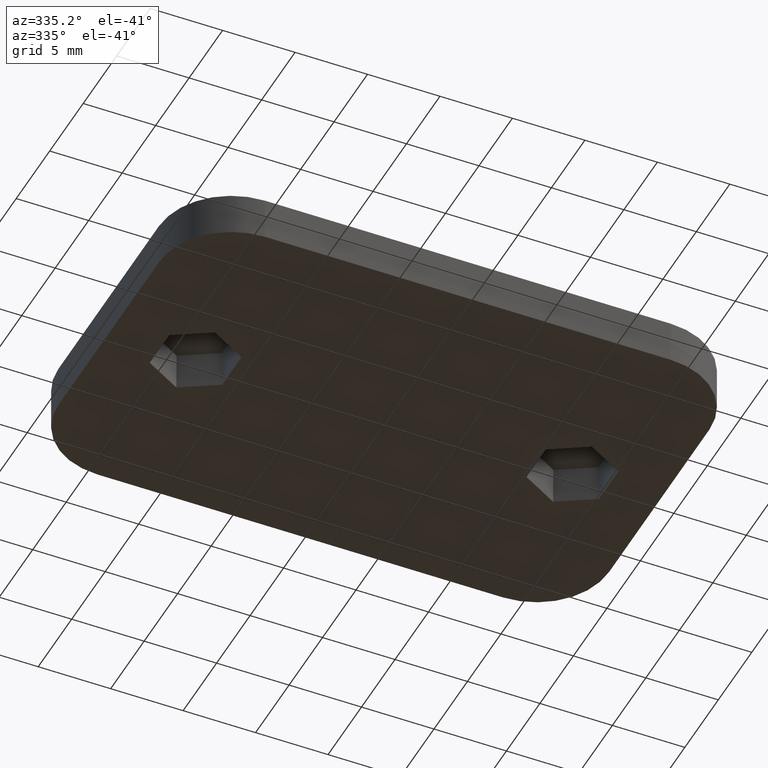
[diagram: clean part render]
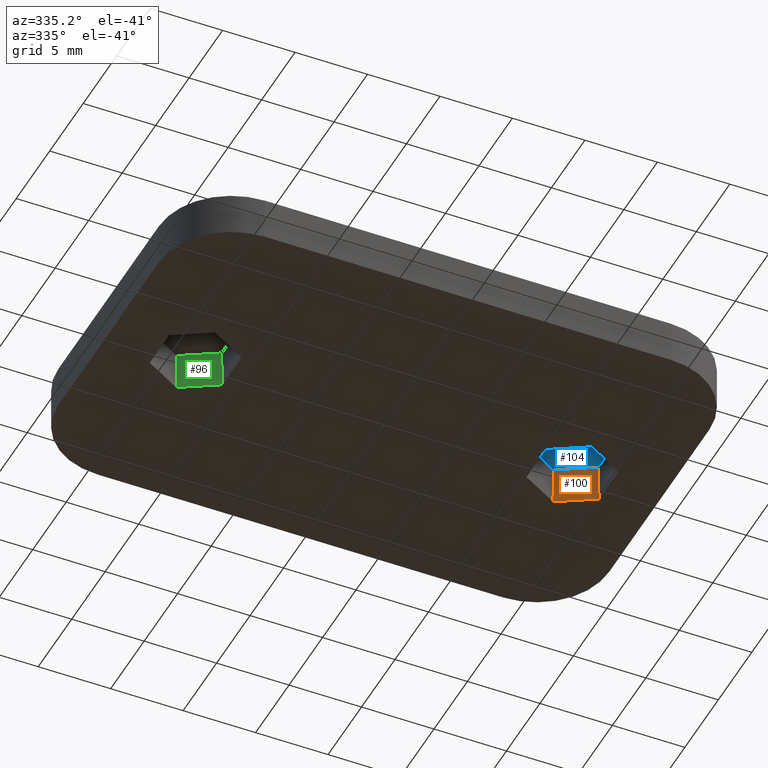
[diagram: same view with three faces highlighted in distinct colors, each labeled with its STEP entity id]
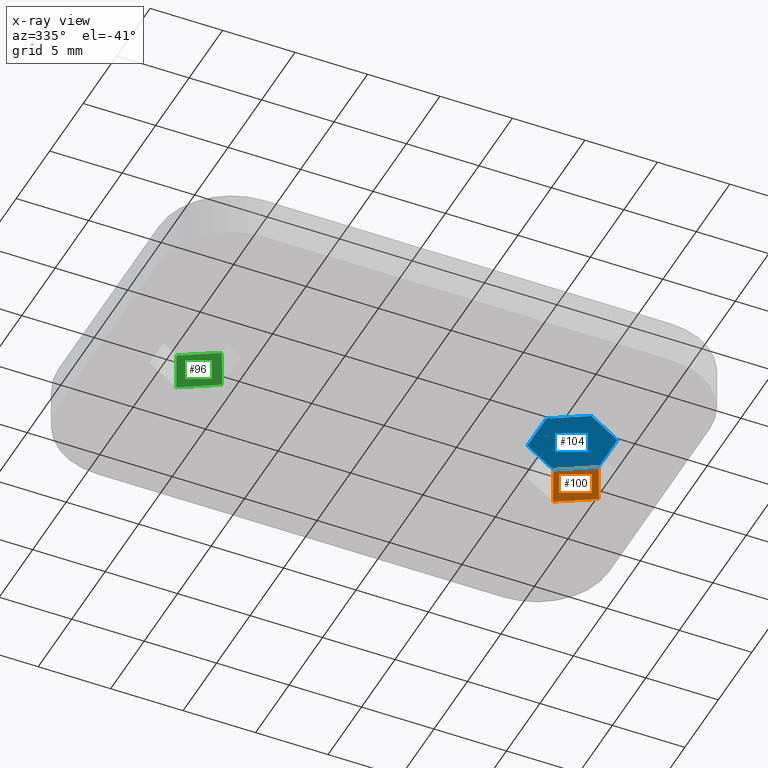
[diagram: x-ray of the same camera — body ghosted, the three highlighted faces saturated]
A machine part, auxiliary view with three faces highlighted in distinct colors.
The next image is the same camera in x-ray (body ghosted, the three faces saturated) — at least one of them is partly hidden behind the body in this view.
Their STEP definitions:

[orange] entity #100 — the highlighted planar face has unit normal (0.4999, 0.8659, 0.0175).
#100 = ADVANCED_FACE( '', ( #198 ), #199, .F. );
#198 = FACE_OUTER_BOUND( '', #331, .T. );
#199 = PLANE( '', #332 );
#331 = EDGE_LOOP( '', ( #620, #621, #622, #623 ) );
#332 = AXIS2_PLACEMENT_3D( '', #624, #625, #626 );
#620 = ORIENTED_EDGE( '', *, *, #937, .F. );
#621 = ORIENTED_EDGE( '', *, *, #971, .F. );
#622 = ORIENTED_EDGE( '', *, *, #972, .T. );
#623 = ORIENTED_EDGE( '', *, *, #973, .T. );
#624 = CARTESIAN_POINT( '', ( -7.75000000000002, 14.8667694316329, -1.47880848231540E-014 ) );
#625 = DIRECTION( '', ( 0.499923847578195, 0.865893503920754, 0.0174524064372835 ) );
#626 = DIRECTION( '', ( -0.866025403784439, 0.500000000000000, -3.06058338817720E-017 ) );
#937 = EDGE_CURVE( '', #1136, #1138, #1139, .F. );
#971 = EDGE_CURVE( '', #1189, #1136, #1191, .T. );
#972 = EDGE_CURVE( '', #1189, #1192, #1193, .F. );
#973 = EDGE_CURVE( '', #1192, #1138, #1194, .T. );
#1136 = VERTEX_POINT( '', #1430 );
#1138 = VERTEX_POINT( '', #1433 );
#1139 = LINE( '', #1434, #1435 );
#1189 = VERTEX_POINT( '', #1511 );
#1191 = LINE( '', #1514, #1515 );
#1192 = VERTEX_POINT( '', #1516 );
#1193 = LINE( '', #1517, #1518 );
#1194 = LINE( '', #1519, #1520 );
#1430 = CARTESIAN_POINT( '', ( 15.5000000000000, 1.44337567297407, -1.39661661588183E-014 ) );
#1433 = CARTESIAN_POINT( '', ( 13.0000000000000, 2.88675134594813, -1.40545445098221E-014 ) );
#1434 = CARTESIAN_POINT( '', ( -7.75000000000002, 14.8667694316329, -1.47880848231540E-014 ) );
#1435 = VECTOR( '', #1729, 1000.00000000000 );
#1511 = CARTESIAN_POINT( '', ( 15.4546168311866, 1.41717368824299, 2.59999999999998 ) );
#1514 = CARTESIAN_POINT( '', ( 15.4952793886761, 1.44065022675549, 0.270443641617816 ) );
#1515 = VECTOR( '', #1775, 1000.00000000000 );
#1516 = CARTESIAN_POINT( '', ( 13.0000000000000, 2.83434737648598, 2.59999999999998 ) );
#1517 = CARTESIAN_POINT( '', ( -7.77269158440670, 14.8274664545362, 2.59999999999998 ) );
#1518 = VECTOR( '', #1776, 1000.00000000000 );
#1519 = CARTESIAN_POINT( '', ( 13.0000000000000, 2.88159351224417, 0.255903660885674 ) );
#1520 = VECTOR( '', #1777, 1000.00000000000 );
#1729 = DIRECTION( '', ( 0.866025403784439, -0.500000000000000, 3.06151588455594E-017 ) );
#1775 = DIRECTION( '', ( 0.0174515205435363, 0.0100756400835789, -0.999796942337605 ) );
#1776 = DIRECTION( '', ( 0.866025403784439, -0.500000000000000, 3.06151588455594E-017 ) );
#1777 = DIRECTION( '', ( -1.05175752667661E-017, 0.0201512801671579, -0.999796942337605 ) );

[blue] entity #104 — the highlighted planar face has unit normal (0, 0, 1).
#104 = ADVANCED_FACE( '', ( #206 ), #207, .F. );
#206 = FACE_OUTER_BOUND( '', #339, .T. );
#207 = PLANE( '', #340 );
#339 = EDGE_LOOP( '', ( #648, #649, #650, #651, #652, #653 ) );
#340 = AXIS2_PLACEMENT_3D( '', #654, #655, #656 );
#648 = ORIENTED_EDGE( '', *, *, #968, .F. );
#649 = ORIENTED_EDGE( '', *, *, #978, .F. );
#650 = ORIENTED_EDGE( '', *, *, #976, .F. );
#651 = ORIENTED_EDGE( '', *, *, #974, .F. );
#652 = ORIENTED_EDGE( '', *, *, #972, .F. );
#653 = ORIENTED_EDGE( '', *, *, #970, .F. );
#654 = CARTESIAN_POINT( '', ( 15.5000000000000, -1.44337567297406, 2.59999999999998 ) );
#655 = DIRECTION( '', ( 0.000000000000000, 6.12303176911189E-017, 1.00000000000000 ) );
#656 = DIRECTION( '', ( -1.00000000000000, 1.11022302462516E-016, -6.79793085057932E-033 ) );
#968 = EDGE_CURVE( '', #1184, #1186, #1187, .F. );
#970 = EDGE_CURVE( '', #1186, #1189, #1190, .F. );
#972 = EDGE_CURVE( '', #1189, #1192, #1193, .F. );
#974 = EDGE_CURVE( '', #1192, #1195, #1196, .F. );
#976 = EDGE_CURVE( '', #1195, #1198, #1199, .F. );
#978 = EDGE_CURVE( '', #1198, #1184, #1201, .F. );
#1184 = VERTEX_POINT( '', #1503 );
#1186 = VERTEX_POINT( '', #1506 );
#1187 = LINE( '', #1507, #1508 );
#1189 = VERTEX_POINT( '', #1511 );
#1190 = LINE( '', #1512, #1513 );
#1192 = VERTEX_POINT( '', #1516 );
#1193 = LINE( '', #1517, #1518 );
#1195 = VERTEX_POINT( '', #1521 );
#1196 = LINE( '', #1522, #1523 );
#1198 = VERTEX_POINT( '', #1526 );
#1199 = LINE( '', #1527, #1528 );
#1201 = LINE( '', #1531, #1532 );
#1503 = CARTESIAN_POINT( '', ( 13.0000000000000, -2.83434737648598, 2.59999999999998 ) );
#1506 = CARTESIAN_POINT( '', ( 15.4546168311866, -1.41717368824299, 2.59999999999998 ) );
#1507 = CARTESIAN_POINT( '', ( -6.52269158440669, -14.1057786180492, 2.59999999999999 ) );
#1508 = VECTOR( '', #1772, 1000.00000000000 );
#1511 = CARTESIAN_POINT( '', ( 15.4546168311866, 1.41717368824299, 2.59999999999998 ) );
#1512 = CARTESIAN_POINT( '', ( 15.4546168311866, 1.44337567297408, 2.59999999999998 ) );
#1513 = VECTOR( '', #1774, 1000.00000000000 );
#1516 = CARTESIAN_POINT( '', ( 13.0000000000000, 2.83434737648598, 2.59999999999998 ) );
#1517 = CARTESIAN_POINT( '', ( -7.77269158440670, 14.8274664545362, 2.59999999999998 ) );
#1518 = VECTOR( '', #1776, 1000.00000000000 );
#1521 = CARTESIAN_POINT( '', ( 10.5453831688134, 1.41717368824299, 2.59999999999998 ) );
#1522 = CARTESIAN_POINT( '', ( -8.97730841559332, -9.85425755332025, 2.59999999999998 ) );
#1523 = VECTOR( '', #1778, 1000.00000000000 );
#1526 = CARTESIAN_POINT( '', ( 10.5453831688134, -1.41717368824299, 2.59999999999998 ) );
#1527 = CARTESIAN_POINT( '', ( 10.5453831688134, 1.44337567297406, 2.59999999999998 ) );
#1528 = VECTOR( '', #1780, 1000.00000000000 );
#1531 = CARTESIAN_POINT( '', ( -10.2273084155933, 10.5759453898073, 2.59999999999998 ) );
#1532 = VECTOR( '', #1782, 1000.00000000000 );
#1772 = DIRECTION( '', ( -0.866025403784439, -0.500000000000000, 3.06151588455594E-017 ) );
#1774 = DIRECTION( '', ( 4.99600361081321E-016, -1.00000000000000, 6.12303176911189E-017 ) );
#1776 = DIRECTION( '', ( 0.866025403784439, -0.500000000000000, 3.06151588455594E-017 ) );
#1778 = DIRECTION( '', ( 0.866025403784439, 0.500000000000000, -3.06151588455594E-017 ) );
#1780 = DIRECTION( '', ( 1.11022302462516E-016, 1.00000000000000, -6.12303176911189E-017 ) );
#1782 = DIRECTION( '', ( -0.866025403784439, 0.500000000000000, -3.06151588455594E-017 ) );

[green] entity #96 — the highlighted planar face has unit normal (0.4999, 0.8659, 0.0175).
#96 = ADVANCED_FACE( '', ( #190 ), #191, .F. );
#190 = FACE_OUTER_BOUND( '', #323, .T. );
#191 = PLANE( '', #324 );
#323 = EDGE_LOOP( '', ( #590, #591, #592, #593 ) );
#324 = AXIS2_PLACEMENT_3D( '', #594, #595, #596 );
#590 = ORIENTED_EDGE( '', *, *, #928, .F. );
#591 = ORIENTED_EDGE( '', *, *, #965, .F. );
#592 = ORIENTED_EDGE( '', *, *, #966, .T. );
#593 = ORIENTED_EDGE( '', *, *, #955, .T. );
#594 = CARTESIAN_POINT( '', ( -14.2500000000000, 3.60843918243516, -1.40987336853240E-014 ) );
#595 = DIRECTION( '', ( 0.499923847578195, 0.865893503920754, 0.0174524064372835 ) );
#596 = DIRECTION( '', ( -0.866025403784439, 0.500000000000000, -3.06058338817720E-017 ) );
#928 = EDGE_CURVE( '', #1119, #1120, #1121, .F. );
#955 = EDGE_CURVE( '', #1166, #1120, #1167, .T. );
#965 = EDGE_CURVE( '', #1180, #1119, #1182, .T. );
#966 = EDGE_CURVE( '', #1180, #1166, #1183, .F. );
#1119 = VERTEX_POINT( '', #1405 );
#1120 = VERTEX_POINT( '', #1406 );
#1121 = LINE( '', #1407, #1408 );
#1166 = VERTEX_POINT( '', #1473 );
#1167 = LINE( '', #1474, #1475 );
#1180 = VERTEX_POINT( '', #1496 );
#1182 = LINE( '', #1499, #1500 );
#1183 = LINE( '', #1501, #1502 );
#1405 = CARTESIAN_POINT( '', ( -10.5000000000000, 1.44337567297406, -1.39661661588183E-014 ) );
#1406 = CARTESIAN_POINT( '', ( -13.0000000000000, 2.88675134594813, -1.40545445098221E-014 ) );
#1407 = CARTESIAN_POINT( '', ( -11.7500000000000, 2.16506350946110, -1.40103553343202E-014 ) );
#1408 = VECTOR( '', #1720, 1000.00000000000 );
#1473 = CARTESIAN_POINT( '', ( -13.0000000000000, 2.83434737648598, 2.59999999999998 ) );
#1474 = CARTESIAN_POINT( '', ( -13.0000000000000, 2.88616522848177, 0.0290799614642704 ) );
#1475 = VECTOR( '', #1759, 1000.00000000000 );
#1496 = CARTESIAN_POINT( '', ( -10.5453831688134, 1.41717368824299, 2.59999999999998 ) );
#1499 = CARTESIAN_POINT( '', ( -10.5007613889232, 1.44293608487429, 0.0436199421964128 ) );
#1500 = VECTOR( '', #1769, 1000.00000000000 );
#1501 = CARTESIAN_POINT( '', ( -11.7726915844067, 2.12576053236448, 2.59999999999998 ) );
#1502 = VECTOR( '', #1770, 1000.00000000000 );
#1720 = DIRECTION( '', ( 0.866025403784439, -0.500000000000000, 3.06151588455594E-017 ) );
#1759 = DIRECTION( '', ( -5.50935137850124E-018, 0.0201512801671579, -0.999796942337605 ) );
#1769 = DIRECTION( '', ( 0.0174515205435363, 0.0100756400835789, -0.999796942337605 ) );
#1770 = DIRECTION( '', ( 0.866025403784439, -0.500000000000000, 3.06151588455594E-017 ) );